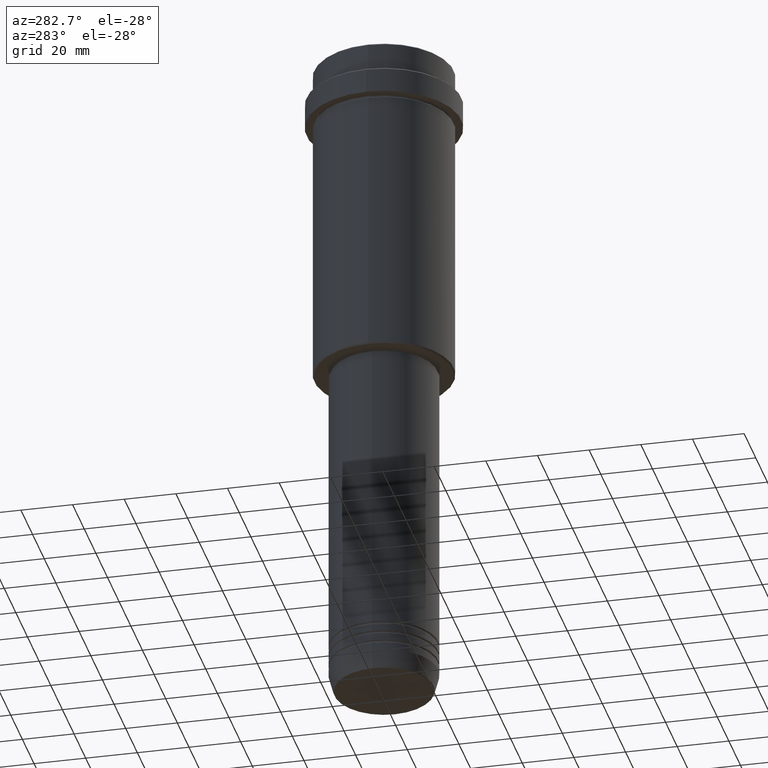
[diagram: clean part render]
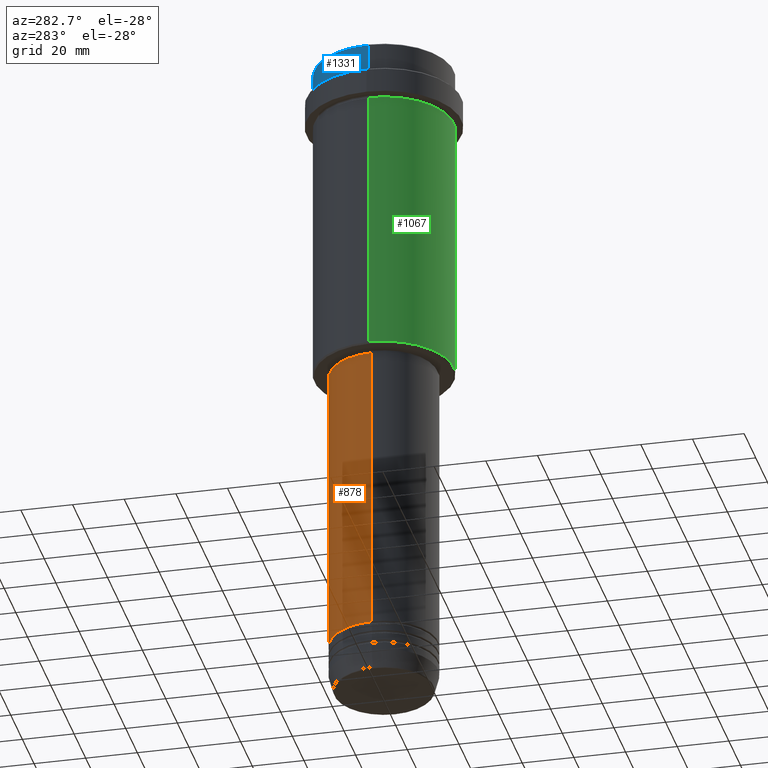
[diagram: same view with three faces highlighted in distinct colors, each labeled with its STEP entity id]
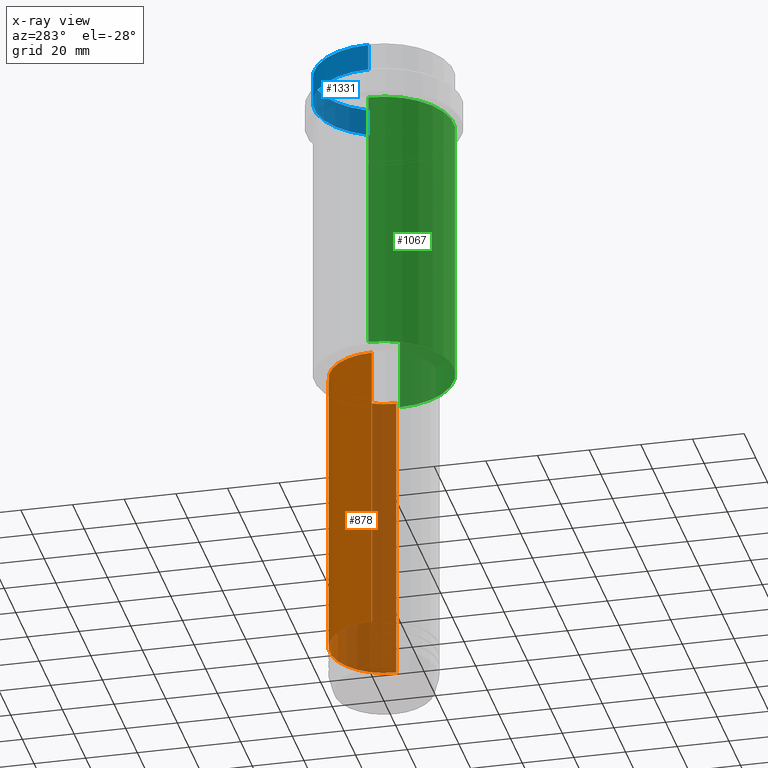
[diagram: x-ray of the same camera — body ghosted, the three highlighted faces saturated]
A machine part, auxiliary view with three faces highlighted in distinct colors.
The next image is the same camera in x-ray (body ghosted, the three faces saturated) — at least one of them is partly hidden behind the body in this view.
Their STEP definitions:

[orange] entity #878 — the highlighted cylindrical surface (partial cylindrical patch) has radius 21 mm, axis along (-0, -0, 1).
#3 = LINE ( 'NONE', #773, #413 ) ;
#36 = CIRCLE ( 'NONE', #867, 21.00000000000000000 ) ;
#51 = VERTEX_POINT ( 'NONE', #945 ) ;
#195 = LINE ( 'NONE', #280, #1010 ) ;
#256 = DIRECTION ( 'NONE',  ( 1.000000000000000000, 0.000000000000000000, 0.000000000000000000 ) ) ;
#273 = ORIENTED_EDGE ( 'NONE', *, *, #1201, .F. ) ;
#280 = CARTESIAN_POINT ( 'NONE',  ( 20.99999999999999645, 0.000000000000000000, 0.000000000000000000 ) ) ;
#413 = VECTOR ( 'NONE', #1198, 1000.000000000000000 ) ;
#417 = ORIENTED_EDGE ( 'NONE', *, *, #1376, .F. ) ;
#456 = EDGE_CURVE ( 'NONE', #51, #779, #36, .T. ) ;
#590 = CARTESIAN_POINT ( 'NONE',  ( 20.99999999999999645, 0.000000000000000000, -129.0000000000000000 ) ) ;
#655 = EDGE_LOOP ( 'NONE', ( #1050, #979, #273, #417 ) ) ;
#699 = VERTEX_POINT ( 'NONE', #1082 ) ;
#739 = FACE_OUTER_BOUND ( 'NONE', #655, .T. ) ;
#773 = CARTESIAN_POINT ( 'NONE',  ( -20.99999999999999645, 2.571758278209441267E-15, 0.000000000000000000 ) ) ;
#779 = VERTEX_POINT ( 'NONE', #1027 ) ;
#780 = CIRCLE ( 'NONE', #966, 20.99999999999999645 ) ;
#811 = CARTESIAN_POINT ( 'NONE',  ( 0.000000000000000000, 0.000000000000000000, -129.0000000000000000 ) ) ;
#820 = DIRECTION ( 'NONE',  ( -0.000000000000000000, -0.000000000000000000, 1.000000000000000000 ) ) ;
#867 = AXIS2_PLACEMENT_3D ( 'NONE', #895, #925, #1356 ) ;
#878 = ADVANCED_FACE ( 'NONE', ( #739 ), #942, .T. ) ;
#895 = CARTESIAN_POINT ( 'NONE',  ( 0.000000000000000000, 0.000000000000000000, -243.9999999999998863 ) ) ;
#925 = DIRECTION ( 'NONE',  ( -0.000000000000000000, -0.000000000000000000, 1.000000000000000000 ) ) ;
#942 = CYLINDRICAL_SURFACE ( 'NONE', #1278, 20.99999999999999645 ) ;
#945 = CARTESIAN_POINT ( 'NONE',  ( 21.00000000000000000, 0.000000000000000000, -243.9999999999998863 ) ) ;
#966 = AXIS2_PLACEMENT_3D ( 'NONE', #811, #820, #1002 ) ;
#979 = ORIENTED_EDGE ( 'NONE', *, *, #1178, .T. ) ;
#1002 = DIRECTION ( 'NONE',  ( 1.000000000000000000, 0.000000000000000000, 0.000000000000000000 ) ) ;
#1010 = VECTOR ( 'NONE', #1173, 1000.000000000000000 ) ;
#1027 = CARTESIAN_POINT ( 'NONE',  ( -21.00000000000000000, 2.571758278209441661E-15, -243.9999999999998863 ) ) ;
#1050 = ORIENTED_EDGE ( 'NONE', *, *, #456, .T. ) ;
#1082 = CARTESIAN_POINT ( 'NONE',  ( -20.99999999999999645, 2.571758278209441267E-15, -129.0000000000000000 ) ) ;
#1140 = DIRECTION ( 'NONE',  ( -0.000000000000000000, -0.000000000000000000, 1.000000000000000000 ) ) ;
#1173 = DIRECTION ( 'NONE',  ( -0.000000000000000000, -0.000000000000000000, 1.000000000000000000 ) ) ;
#1178 = EDGE_CURVE ( 'NONE', #779, #699, #3, .T. ) ;
#1198 = DIRECTION ( 'NONE',  ( -0.000000000000000000, -0.000000000000000000, 1.000000000000000000 ) ) ;
#1201 = EDGE_CURVE ( 'NONE', #1260, #699, #780, .T. ) ;
#1260 = VERTEX_POINT ( 'NONE', #590 ) ;
#1278 = AXIS2_PLACEMENT_3D ( 'NONE', #1393, #1140, #256 ) ;
#1356 = DIRECTION ( 'NONE',  ( 1.000000000000000000, 0.000000000000000000, 0.000000000000000000 ) ) ;
#1376 = EDGE_CURVE ( 'NONE', #51, #1260, #195, .T. ) ;
#1393 = CARTESIAN_POINT ( 'NONE',  ( 0.000000000000000000, 0.000000000000000000, 0.000000000000000000 ) ) ;

[blue] entity #1331 — the highlighted cylindrical surface (partial cylindrical patch) has radius 27 mm, axis along (-0, -0, 1).
#27 = DIRECTION ( 'NONE',  ( 1.000000000000000000, 0.000000000000000000, 0.000000000000000000 ) ) ;
#55 = CARTESIAN_POINT ( 'NONE',  ( -26.99999999999999645, 3.306546357697853339E-15, -0.5000000000000038858 ) ) ;
#59 = DIRECTION ( 'NONE',  ( -0.000000000000000000, -0.000000000000000000, 1.000000000000000000 ) ) ;
#92 = DIRECTION ( 'NONE',  ( 1.000000000000000000, 0.000000000000000000, 0.000000000000000000 ) ) ;
#124 = DIRECTION ( 'NONE',  ( -0.000000000000000000, -0.000000000000000000, 1.000000000000000000 ) ) ;
#127 = EDGE_CURVE ( 'NONE', #1078, #249, #1261, .T. ) ;
#152 = VECTOR ( 'NONE', #124, 1000.000000000000000 ) ;
#164 = CYLINDRICAL_SURFACE ( 'NONE', #1185, 26.99999999999999645 ) ;
#243 = ORIENTED_EDGE ( 'NONE', *, *, #836, .F. ) ;
#249 = VERTEX_POINT ( 'NONE', #55 ) ;
#370 = DIRECTION ( 'NONE',  ( 0.000000000000000000, 0.000000000000000000, -1.000000000000000000 ) ) ;
#452 = VERTEX_POINT ( 'NONE', #485 ) ;
#485 = CARTESIAN_POINT ( 'NONE',  ( 26.99999999999999645, 0.000000000000000000, -0.5000000000000038858 ) ) ;
#494 = CARTESIAN_POINT ( 'NONE',  ( 0.000000000000000000, 0.000000000000000000, 0.000000000000000000 ) ) ;
#502 = AXIS2_PLACEMENT_3D ( 'NONE', #686, #370, #27 ) ;
#508 = CARTESIAN_POINT ( 'NONE',  ( -26.99999999999999645, 3.306546357697853339E-15, 0.000000000000000000 ) ) ;
#510 = ORIENTED_EDGE ( 'NONE', *, *, #829, .T. ) ;
#566 = LINE ( 'NONE', #1004, #152 ) ;
#582 = ORIENTED_EDGE ( 'NONE', *, *, #1126, .T. ) ;
#654 = CARTESIAN_POINT ( 'NONE',  ( -26.99999999999999645, 3.306546357697853339E-15, -11.00000000000000178 ) ) ;
#686 = CARTESIAN_POINT ( 'NONE',  ( 0.000000000000000000, 0.000000000000000000, -0.5000000000000038858 ) ) ;
#765 = CARTESIAN_POINT ( 'NONE',  ( 0.000000000000000000, 0.000000000000000000, -11.00000000000000178 ) ) ;
#829 = EDGE_CURVE ( 'NONE', #249, #452, #1160, .T. ) ;
#836 = EDGE_CURVE ( 'NONE', #1017, #452, #566, .T. ) ;
#934 = VECTOR ( 'NONE', #59, 1000.000000000000000 ) ;
#935 = DIRECTION ( 'NONE',  ( -0.000000000000000000, -0.000000000000000000, 1.000000000000000000 ) ) ;
#990 = AXIS2_PLACEMENT_3D ( 'NONE', #765, #992, #92 ) ;
#992 = DIRECTION ( 'NONE',  ( -0.000000000000000000, -0.000000000000000000, 1.000000000000000000 ) ) ;
#1004 = CARTESIAN_POINT ( 'NONE',  ( 26.99999999999999645, 0.000000000000000000, 0.000000000000000000 ) ) ;
#1017 = VERTEX_POINT ( 'NONE', #1244 ) ;
#1048 = EDGE_LOOP ( 'NONE', ( #582, #1155, #510, #243 ) ) ;
#1078 = VERTEX_POINT ( 'NONE', #654 ) ;
#1104 = DIRECTION ( 'NONE',  ( 1.000000000000000000, 0.000000000000000000, 0.000000000000000000 ) ) ;
#1126 = EDGE_CURVE ( 'NONE', #1017, #1078, #1252, .T. ) ;
#1145 = FACE_OUTER_BOUND ( 'NONE', #1048, .T. ) ;
#1155 = ORIENTED_EDGE ( 'NONE', *, *, #127, .T. ) ;
#1160 = CIRCLE ( 'NONE', #502, 26.99999999999999645 ) ;
#1185 = AXIS2_PLACEMENT_3D ( 'NONE', #494, #935, #1104 ) ;
#1244 = CARTESIAN_POINT ( 'NONE',  ( 26.99999999999999645, 0.000000000000000000, -11.00000000000000178 ) ) ;
#1252 = CIRCLE ( 'NONE', #990, 26.99999999999999645 ) ;
#1261 = LINE ( 'NONE', #508, #934 ) ;
#1331 = ADVANCED_FACE ( 'NONE', ( #1145 ), #164, .T. ) ;

[green] entity #1067 — the highlighted cylindrical surface (partial cylindrical patch) has radius 27 mm, axis along (-0, -0, 1).
#119 = CYLINDRICAL_SURFACE ( 'NONE', #531, 26.99999999999999645 ) ;
#154 = EDGE_CURVE ( 'NONE', #268, #683, #497, .T. ) ;
#177 = CARTESIAN_POINT ( 'NONE',  ( -26.99999999999999645, 3.306546357697853339E-15, 0.000000000000000000 ) ) ;
#257 = EDGE_CURVE ( 'NONE', #1290, #750, #432, .T. ) ;
#263 = VECTOR ( 'NONE', #313, 1000.000000000000000 ) ;
#268 = VERTEX_POINT ( 'NONE', #1217 ) ;
#308 = CARTESIAN_POINT ( 'NONE',  ( 0.000000000000000000, 0.000000000000000000, 0.000000000000000000 ) ) ;
#313 = DIRECTION ( 'NONE',  ( -0.000000000000000000, -0.000000000000000000, 1.000000000000000000 ) ) ;
#396 = CARTESIAN_POINT ( 'NONE',  ( 0.000000000000000000, 0.000000000000000000, -23.00000000000000000 ) ) ;
#432 = CIRCLE ( 'NONE', #960, 26.99999999999999645 ) ;
#443 = DIRECTION ( 'NONE',  ( 1.000000000000000000, 0.000000000000000000, 0.000000000000000000 ) ) ;
#497 = CIRCLE ( 'NONE', #567, 26.99999999999999645 ) ;
#531 = AXIS2_PLACEMENT_3D ( 'NONE', #308, #743, #443 ) ;
#567 = AXIS2_PLACEMENT_3D ( 'NONE', #396, #1116, #1385 ) ;
#589 = DIRECTION ( 'NONE',  ( -1.000000000000000000, 0.000000000000000000, 0.000000000000000000 ) ) ;
#683 = VERTEX_POINT ( 'NONE', #877 ) ;
#708 = VECTOR ( 'NONE', #737, 1000.000000000000000 ) ;
#724 = ORIENTED_EDGE ( 'NONE', *, *, #154, .F. ) ;
#737 = DIRECTION ( 'NONE',  ( -0.000000000000000000, -0.000000000000000000, 1.000000000000000000 ) ) ;
#743 = DIRECTION ( 'NONE',  ( -0.000000000000000000, -0.000000000000000000, 1.000000000000000000 ) ) ;
#750 = VERTEX_POINT ( 'NONE', #1238 ) ;
#831 = CARTESIAN_POINT ( 'NONE',  ( 26.99999999999999645, 0.000000000000000000, 0.000000000000000000 ) ) ;
#847 = ORIENTED_EDGE ( 'NONE', *, *, #1344, .T. ) ;
#856 = ORIENTED_EDGE ( 'NONE', *, *, #257, .T. ) ;
#877 = CARTESIAN_POINT ( 'NONE',  ( 26.99999999999999645, 0.000000000000000000, -23.00000000000000000 ) ) ;
#926 = DIRECTION ( 'NONE',  ( -0.000000000000000000, -0.000000000000000000, 1.000000000000000000 ) ) ;
#960 = AXIS2_PLACEMENT_3D ( 'NONE', #1009, #926, #589 ) ;
#1009 = CARTESIAN_POINT ( 'NONE',  ( 0.000000000000000000, 0.000000000000000000, -127.5000000000000568 ) ) ;
#1067 = ADVANCED_FACE ( 'NONE', ( #1086 ), #119, .T. ) ;
#1086 = FACE_OUTER_BOUND ( 'NONE', #1216, .T. ) ;
#1116 = DIRECTION ( 'NONE',  ( -0.000000000000000000, -0.000000000000000000, 1.000000000000000000 ) ) ;
#1159 = LINE ( 'NONE', #177, #263 ) ;
#1216 = EDGE_LOOP ( 'NONE', ( #1228, #856, #847, #724 ) ) ;
#1217 = CARTESIAN_POINT ( 'NONE',  ( -26.99999999999999645, 3.306546357697853339E-15, -23.00000000000000000 ) ) ;
#1228 = ORIENTED_EDGE ( 'NONE', *, *, #1391, .F. ) ;
#1238 = CARTESIAN_POINT ( 'NONE',  ( 26.99999999999999645, 0.000000000000000000, -127.5000000000000568 ) ) ;
#1290 = VERTEX_POINT ( 'NONE', #1350 ) ;
#1344 = EDGE_CURVE ( 'NONE', #750, #683, #1365, .T. ) ;
#1350 = CARTESIAN_POINT ( 'NONE',  ( -26.99999999999999645, 3.306546357697853339E-15, -127.5000000000000568 ) ) ;
#1365 = LINE ( 'NONE', #831, #708 ) ;
#1385 = DIRECTION ( 'NONE',  ( 1.000000000000000000, 0.000000000000000000, 0.000000000000000000 ) ) ;
#1391 = EDGE_CURVE ( 'NONE', #1290, #268, #1159, .T. ) ;